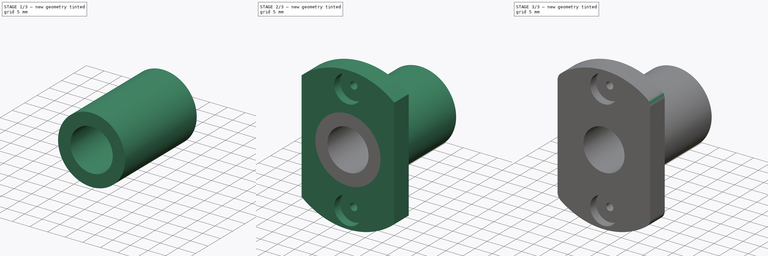
[diagram: build sequence overview — one tinted view per stage of 3, left to right]
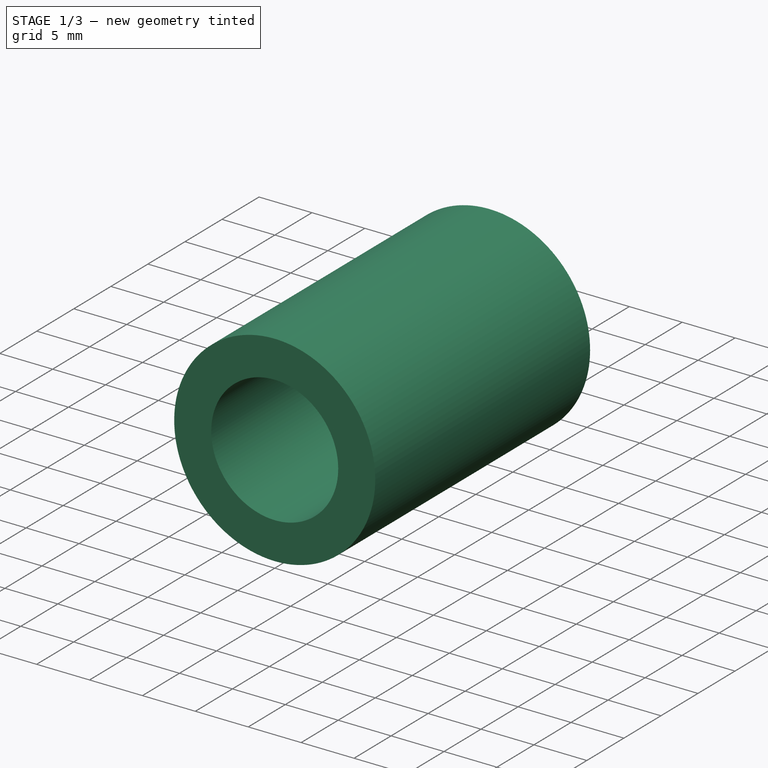
[diagram: stage 1 of 3 — iso view after this stage's code; geometry added in this stage tinted green]
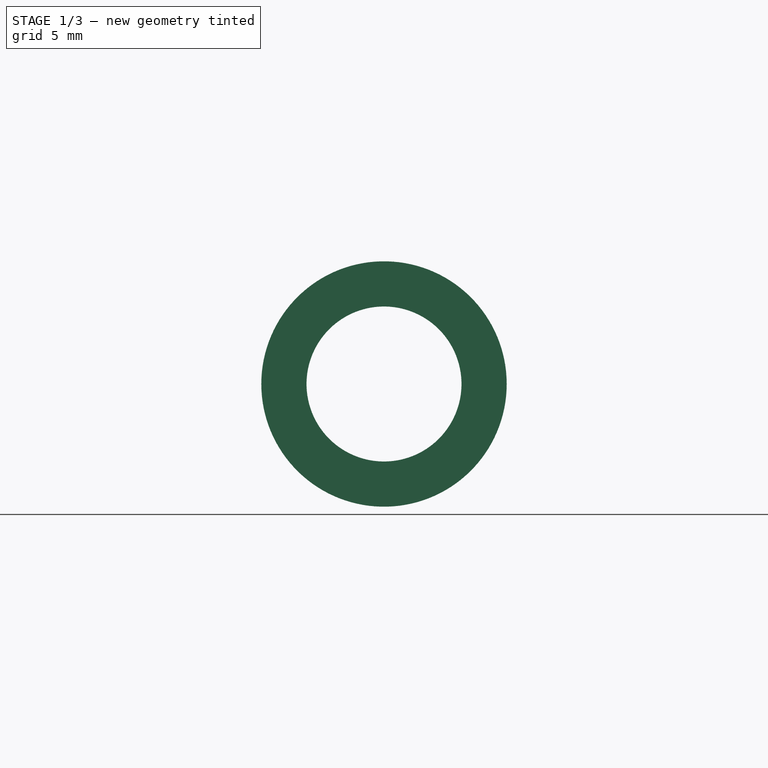
[diagram: stage 1 of 3 — front view after this stage's code; geometry added in this stage tinted green]
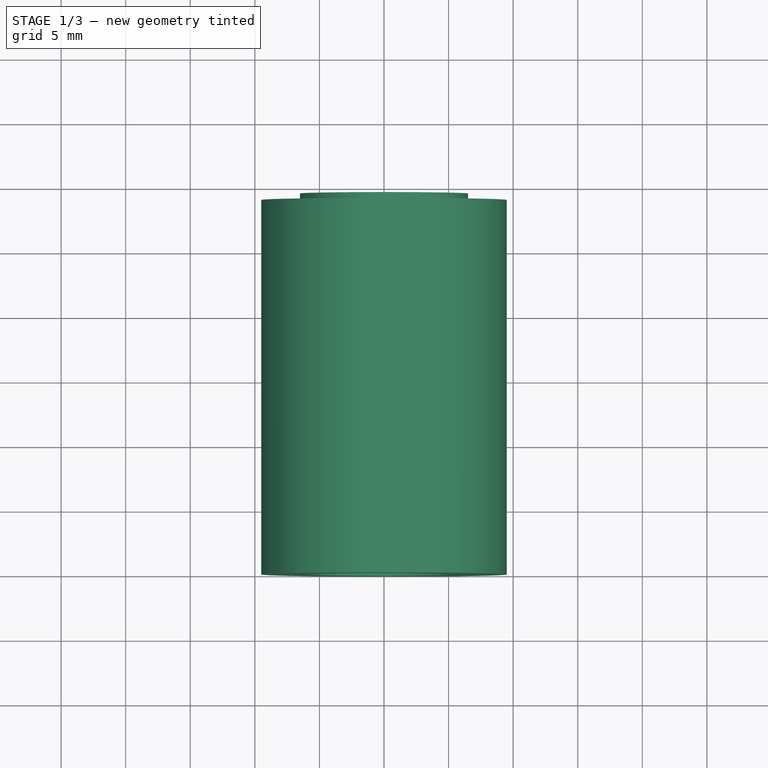
[diagram: stage 1 of 3 — top view after this stage's code; geometry added in this stage tinted green]
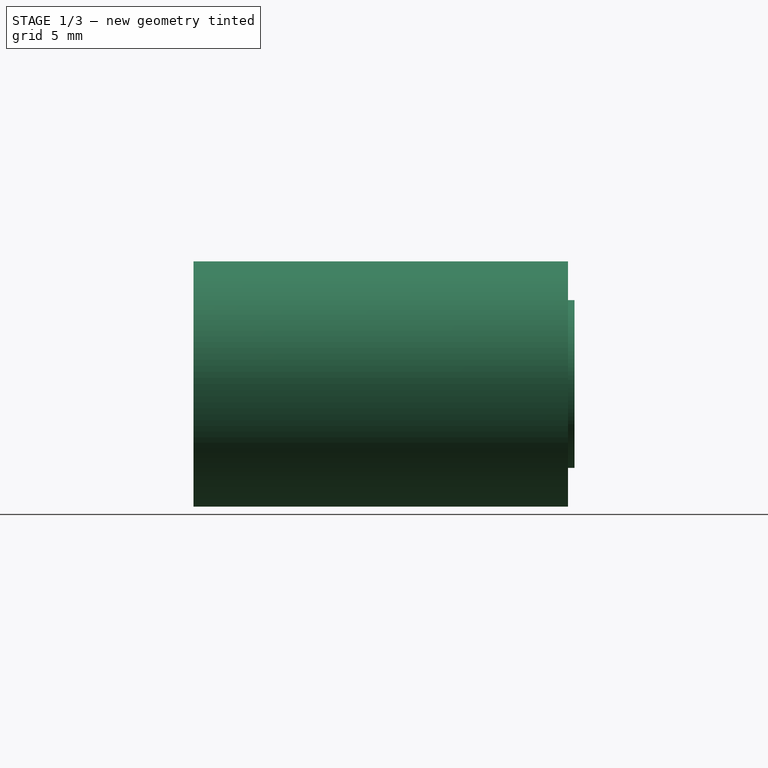
[diagram: stage 1 of 3 — right view after this stage's code; geometry added in this stage tinted green]
FCSTD DOCUMENT  (FreeCAD 1.0R39319 (Git))
Label: Bearing-Oval-LMH12UU
License: All rights reserved
LicenseURL: http://en.wikipedia.org/wiki/All_rights_reserved
objects: Sketcher::SketchObject×5, PartDesign::Pad×4, PartDesign::Body×3, PartDesign::Fillet×2, PartDesign::Hole×1
note: 34 computed .brp shape members not serialized (recipe doc carries the construction recipe); baked Part::Feature solids carry a one-line shape summary decoded from their .brp

FEATURE [PartDesign::Body] Body
  AllowCompound = false
  Group = -> [Sketch,Pad,Sketch001,Hole,Sketch002,Pad001,Fillet,Fillet001]
  Origin = -> Origin
  Tip = -> Fillet001
FEATURE [Sketcher::SketchObject] Sketch003
  ArcFitTolerance = 0
  AttachmentSupport = -> [XZ_Plane001]
  FullyConstrained = true
  MakeInternals = false
  MapMode = 5
  Placement = pos=(0,0,0) rot=(1,0,0;1.5708rad)
  sketch-geometry (2):
    g0: Circle CenterX=0 CenterY=0 CenterZ=0 NormalX=0 NormalY=0 NormalZ=1 AngleXU=0 Radius=9.5
    g1: Circle CenterX=0 CenterY=0 CenterZ=0 NormalX=0 NormalY=0 NormalZ=1 AngleXU=0 Radius=6.5
  constraints (4):
    c: Coincident(g0,g-1)
    c: Coincident(g1,g0)
    c: Diameter(g1) = 13
    c: Diameter(g0) = 19
FEATURE [PartDesign::Pad] Pad002
  AllowMultiFace = false
  Direction = (0,-1,2e-16)
  Length = 29
  Length2 = 100
  Placement = pos=(0,0,0) rot=(1,0,0;1.5708rad)
  Profile = -> Sketch003
  Reversed = true
  Suppressed = false
  Type = 0
FEATURE [PartDesign::Body] Body001
  AllowCompound = false
  Group = -> [Sketch003,Pad002]
  Origin = -> Origin001
  Placement = pos=(0,0.5,0) rot=(0,0,1;0rad)
  Tip = -> Pad002
FEATURE [Sketcher::SketchObject] Sketch004
  ArcFitTolerance = 0
  AttachmentSupport = -> [XZ_Plane002]
  FullyConstrained = true
  MakeInternals = false
  MapMode = 5
  Placement = pos=(0,0,0) rot=(1,0,0;1.5708rad)
  sketch-geometry (2):
    g0: Circle CenterX=0 CenterY=0 CenterZ=0 NormalX=0 NormalY=0 NormalZ=1 AngleXU=0 Radius=6
    g1: Circle CenterX=0 CenterY=0 CenterZ=0 NormalX=0 NormalY=0 NormalZ=1 AngleXU=0 Radius=6.5
  constraints (4):
    c: Coincident(g0,g-1)
    c: Coincident(g1,g0)
    c: Diameter(g1) = 13
    c: Diameter(g0) = 12
FEATURE [PartDesign::Pad] Pad003
  AllowMultiFace = false
  Direction = (0,-1,2e-16)
  Length = 29.5
  Length2 = 100
  Placement = pos=(0,0,0) rot=(1,0,0;1.5708rad)
  Profile = -> Sketch004
  Reversed = true
  Suppressed = false
  Type = 0
FEATURE [PartDesign::Body] Body002
  AllowCompound = false
  Group = -> [Sketch004,Pad003]
  Origin = -> Origin002
  Tip = -> Pad003
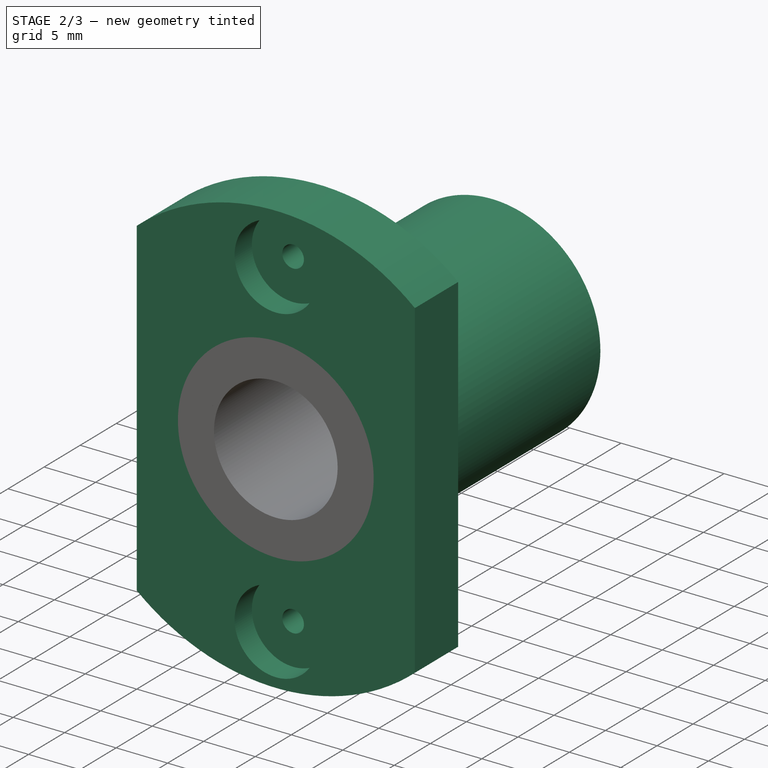
[diagram: stage 2 of 3 — iso view after this stage's code; geometry added in this stage tinted green]
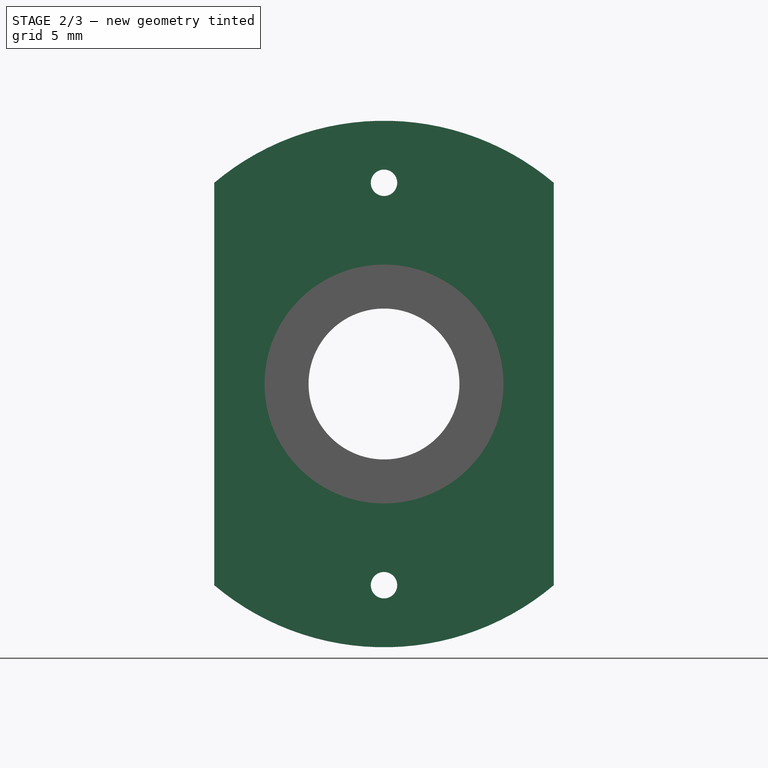
[diagram: stage 2 of 3 — front view after this stage's code; geometry added in this stage tinted green]
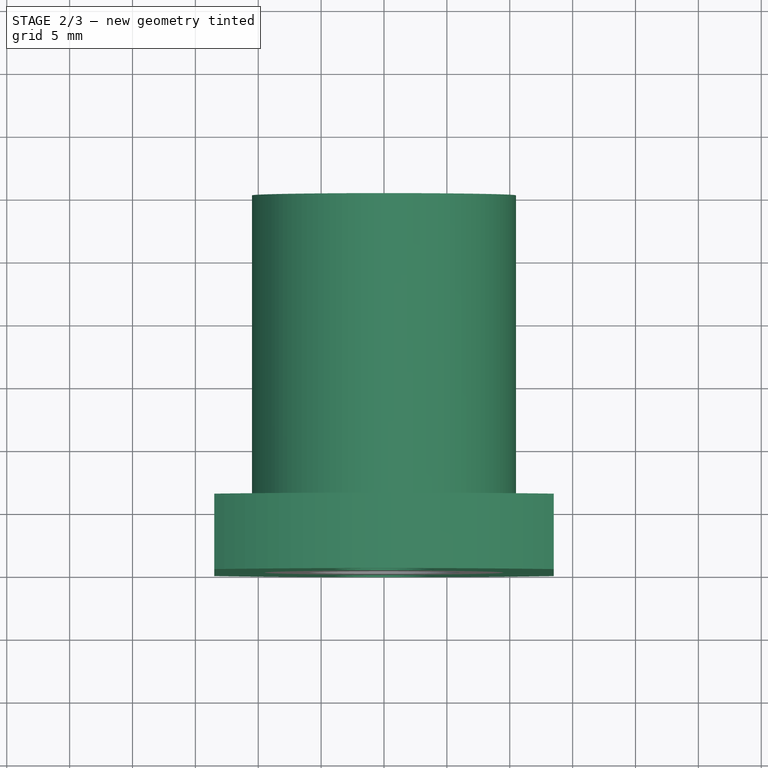
[diagram: stage 2 of 3 — top view after this stage's code; geometry added in this stage tinted green]
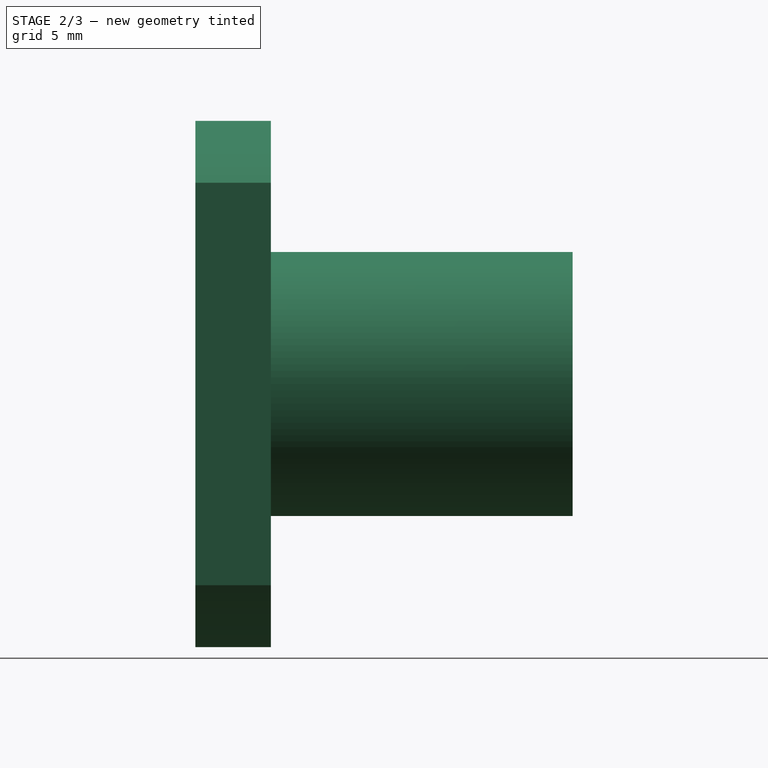
[diagram: stage 2 of 3 — right view after this stage's code; geometry added in this stage tinted green]
FEATURE [Sketcher::SketchObject] Sketch
  ArcFitTolerance = 0
  AttachmentSupport = -> [XZ_Plane]
  FullyConstrained = true
  MakeInternals = false
  MapMode = 5
  Placement = pos=(0,0,0) rot=(1,0,0;1.5708rad)
  sketch-geometry (5):
    g0: ArcOfCircle CenterX=-3e-16 CenterY=0 CenterZ=0 NormalX=0 NormalY=0 NormalZ=1 AngleXU=0 Radius=20.9344 StartAngle=0.869942 EndAngle=2.27165
    g1: ArcOfCircle CenterX=-3e-16 CenterY=0 CenterZ=0 NormalX=0 NormalY=0 NormalZ=1 AngleXU=0 Radius=20.9344 StartAngle=4.01153 EndAngle=5.41324
    g2: LineSegment StartX=-13.5 StartY=16 StartZ=0 EndX=-13.5 EndY=-16 EndZ=0
    g3: LineSegment StartX=13.5 StartY=16 StartZ=0 EndX=13.5 EndY=-16 EndZ=0
    g4: Circle CenterX=-3e-16 CenterY=0 CenterZ=0 NormalX=0 NormalY=0 NormalZ=1 AngleXU=0 Radius=9.5
  constraints (14):
    c: Vertical(g2)
    c: DistanceY(g3,g3) = 32
    c: DistanceX(g1,g1) = 27
    c: Coincident(g0,g2)
    c: Coincident(g0,g3)
    c: Coincident(g2,g1)
    c: Coincident(g3,g1)
    c: Equal(g2,g3)
    c: Symmetric(g1,g1,g-2)
    c: Equal(g0,g1)
    c: Coincident(g1,g0)
    c: Coincident(g0,g-1)
    c: Coincident(g4,g0)
    c: Diameter(g4) = 19
FEATURE [PartDesign::Pad] Pad
  AllowMultiFace = false
  Direction = (0,-1,2e-16)
  Length = 6
  Length2 = 100
  Placement = pos=(0,0,0) rot=(1,0,0;1.5708rad)
  Profile = -> Sketch
  Reversed = true
  Suppressed = false
  Type = 0
FEATURE [Sketcher::SketchObject] Sketch001
  ArcFitTolerance = 0
  AttachmentSupport = -> [Pad]
  FullyConstrained = true
  MakeInternals = false
  MapMode = 5
  Placement = pos=(0,0,0) rot=(1,0,0;1.5708rad)
  sketch-geometry (2):
    g0: Circle CenterX=0 CenterY=16 CenterZ=0 NormalX=0 NormalY=0 NormalZ=1 AngleXU=0 Radius=2.05
    g1: Circle CenterX=0 CenterY=-16 CenterZ=0 NormalX=0 NormalY=0 NormalZ=1 AngleXU=0 Radius=2.05
  constraints (5):
    c: PointOnObject(g0,g-2)
    c: Symmetric(g1,g0,g-1)
    c: Equal(g0,g1)
    c: DistanceY(g1,g0) = 32
    c: Diameter(g0) = 4.1
FEATURE [PartDesign::Hole] Hole
  AllowMultiFace = false
  BaseFeature = -> Pad
  CustomThreadClearance = 0
  Depth = 25
  DepthType = 1
  Diameter = 2.1
  DrillForDepth = false
  DrillPoint = 1
  DrillPointAngle = 118
  HoleCutCountersinkAngle = 90
  HoleCutCustomValues = false
  HoleCutDepth = 2.4
  HoleCutDiameter = 8
  HoleCutType = 1
  ModelThread = false
  Placement = pos=(0,0,0) rot=(1,0,0;1.5708rad)
  Profile = -> Sketch001
  Suppressed = false
  Tapered = false
  TaperedAngle = 90
  ThreadClass = 0
  ThreadDepth = 23.5
  ThreadDepthType = 0
  ThreadDirection = 0
  ThreadFit = 0
  ThreadSize = 5
  ThreadType = 1
  Threaded = false
  UseCustomThreadClearance = false
FEATURE [Sketcher::SketchObject] Sketch002
  ArcFitTolerance = 0
  AttachmentSupport = -> [Hole]
  FullyConstrained = true
  MakeInternals = false
  MapMode = 5
  Placement = pos=(0,6,0) rot=(-1,0,0;1.5708rad)
  sketch-geometry (2):
    g0: Circle CenterX=0 CenterY=0 CenterZ=0 NormalX=0 NormalY=0 NormalZ=1 AngleXU=0 Radius=10.5
    g1: Circle CenterX=0 CenterY=0 CenterZ=0 NormalX=0 NormalY=0 NormalZ=1 AngleXU=0 Radius=9.5
  constraints (4):
    c: Coincident(g0,g-1)
    c: Coincident(g1,g0)
    c: Diameter(g0) = 21
    c: Diameter(g1) = 19
FEATURE [PartDesign::Pad] Pad001
  AllowMultiFace = false
  BaseFeature = -> Hole
  Direction = (0,1,2e-16)
  Length = 24
  Length2 = 100
  Placement = pos=(0,0,0) rot=(1,0,0;1.5708rad)
  Profile = -> Sketch002
  Suppressed = false
  Type = 0
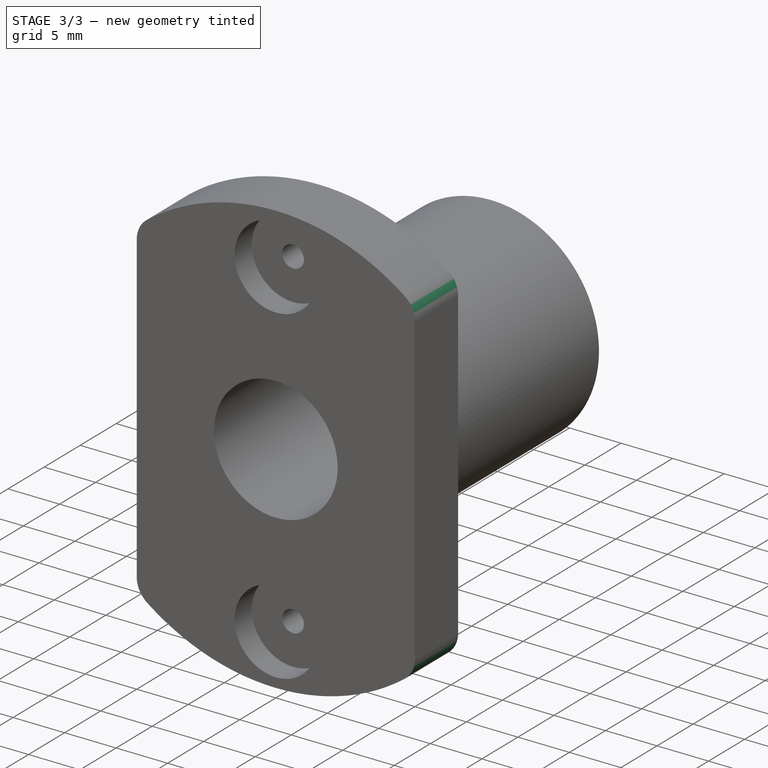
[diagram: stage 3 of 3 — iso view after this stage's code; geometry added in this stage tinted green]
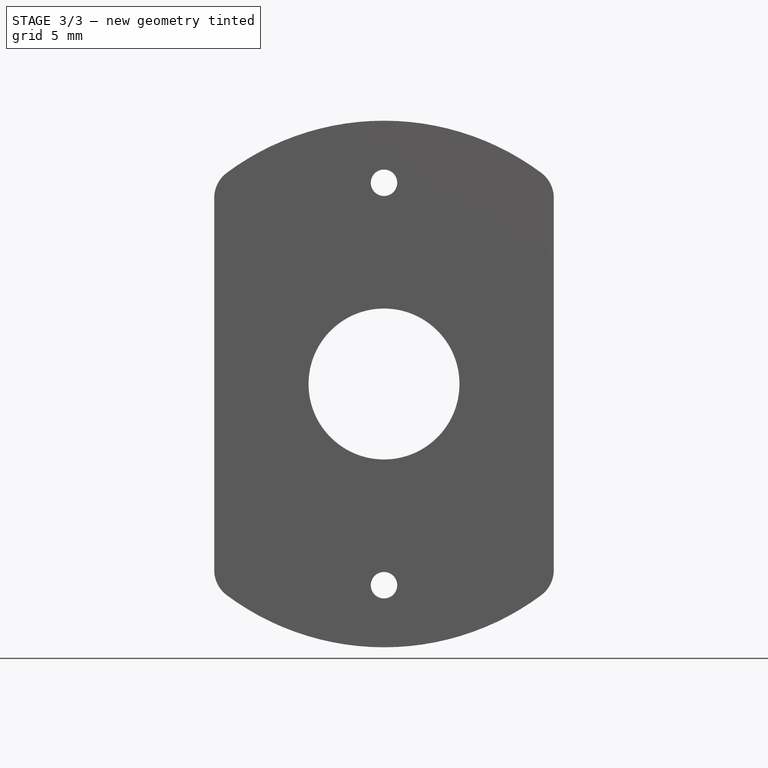
[diagram: stage 3 of 3 — front view after this stage's code; geometry added in this stage tinted green]
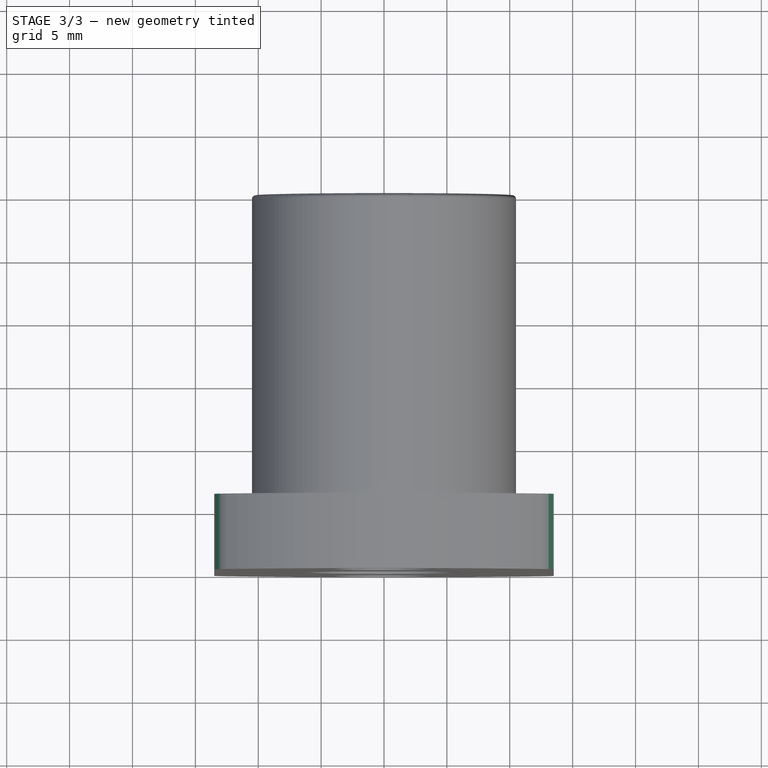
[diagram: stage 3 of 3 — top view after this stage's code; geometry added in this stage tinted green]
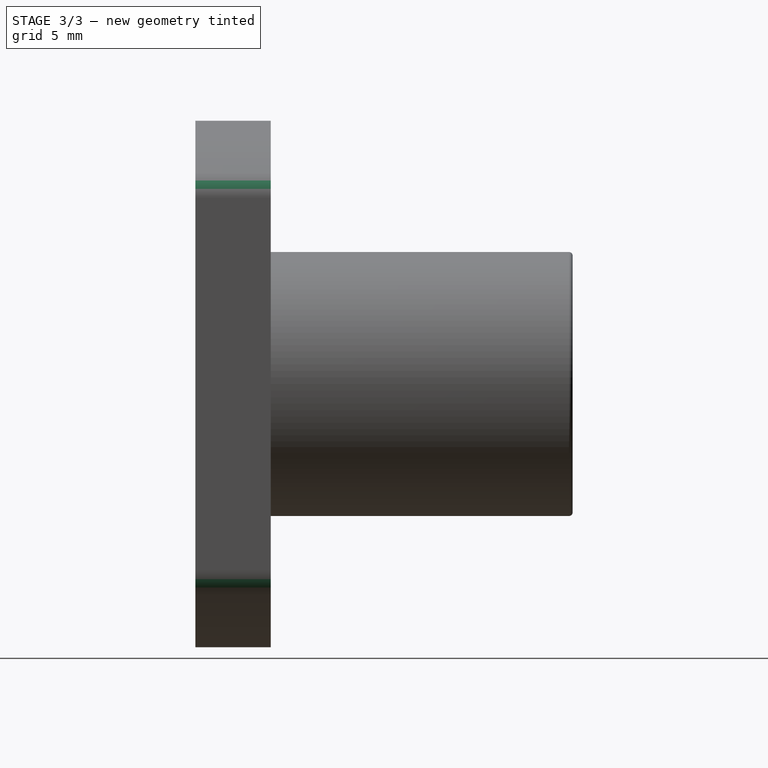
[diagram: stage 3 of 3 — right view after this stage's code; geometry added in this stage tinted green]
FEATURE [PartDesign::Fillet] Fillet
  Base = -> Pad001 [Edge5,Edge1,Edge2,Edge8]
  BaseFeature = -> Pad001
  Placement = pos=(0,0,0) rot=(1,0,0;1.5708rad)
  Radius = 2.5
  Refine = true
  SupportTransform = false
  Suppressed = false
  UseAllEdges = false
FEATURE [PartDesign::Fillet] Fillet001
  Base = -> Fillet [Edge38,Edge41]
  BaseFeature = -> Fillet
  Placement = pos=(0,0,0) rot=(1,0,0;1.5708rad)
  Radius = 0.3
  Refine = true
  SupportTransform = false
  Suppressed = false
  UseAllEdges = false
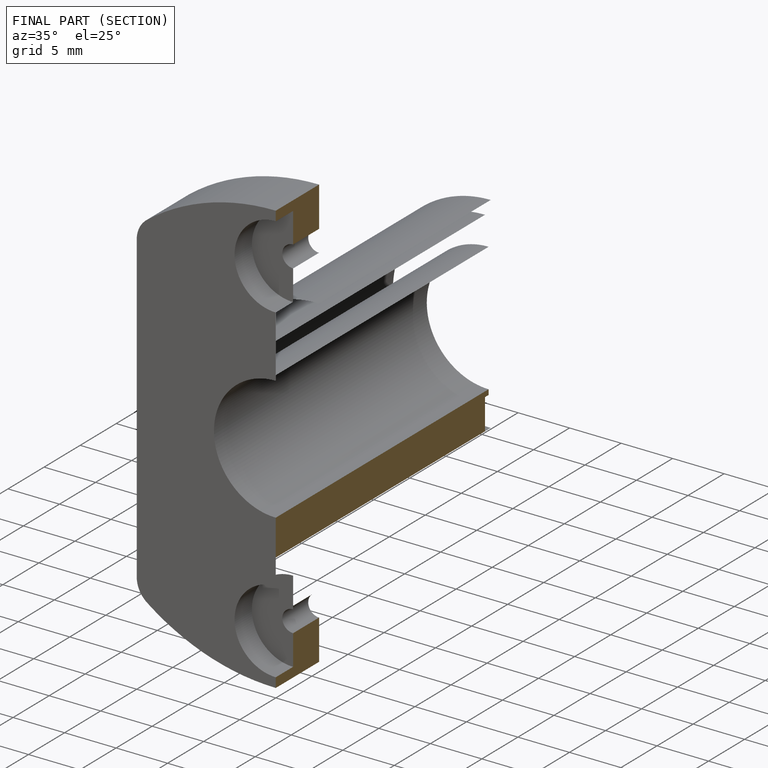
[diagram: finished part — half-section view (interior)]
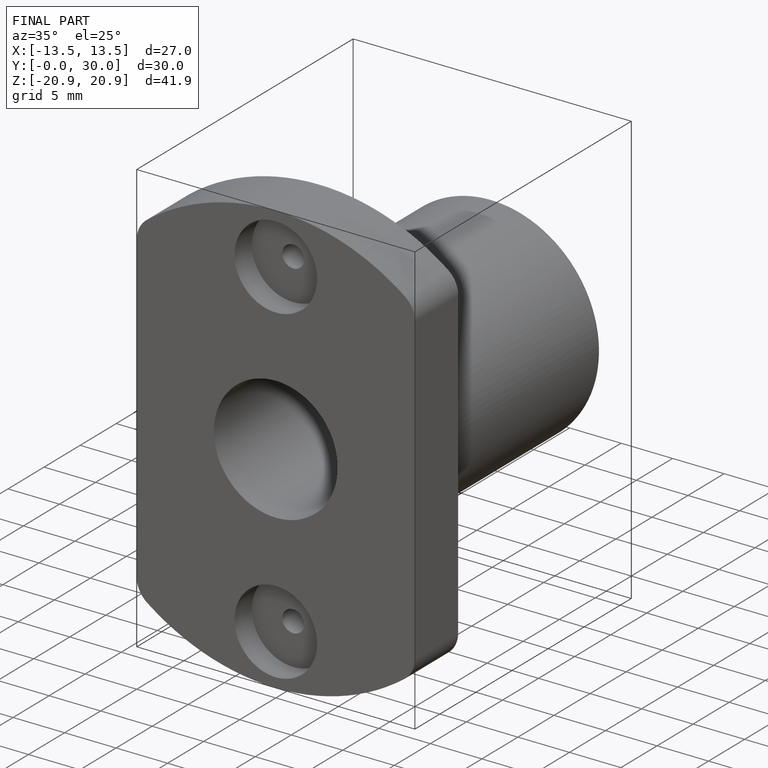
[diagram: finished part — iso view with bounding-box wireframe]
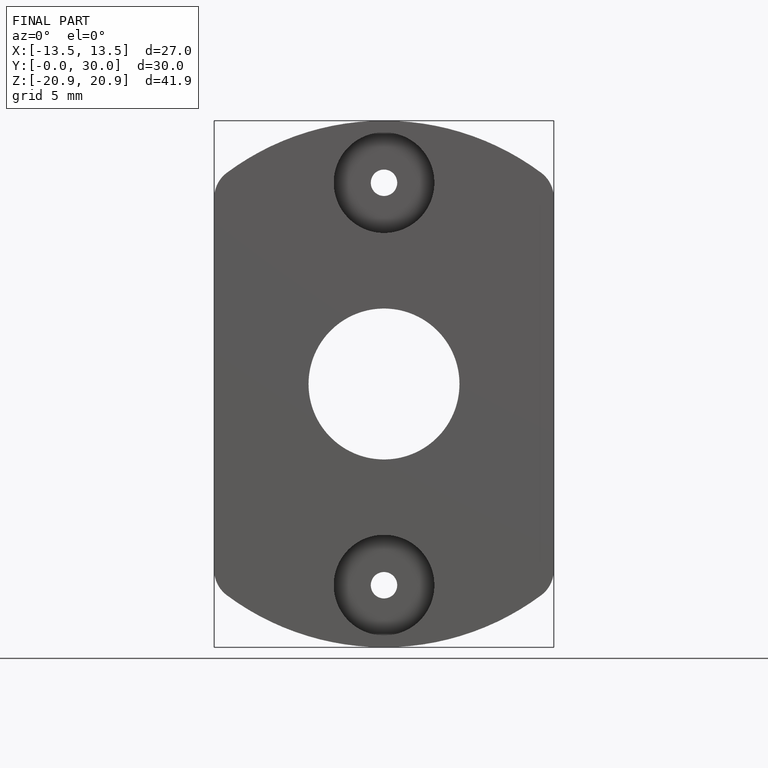
[diagram: finished part — front view with bounding-box wireframe]
